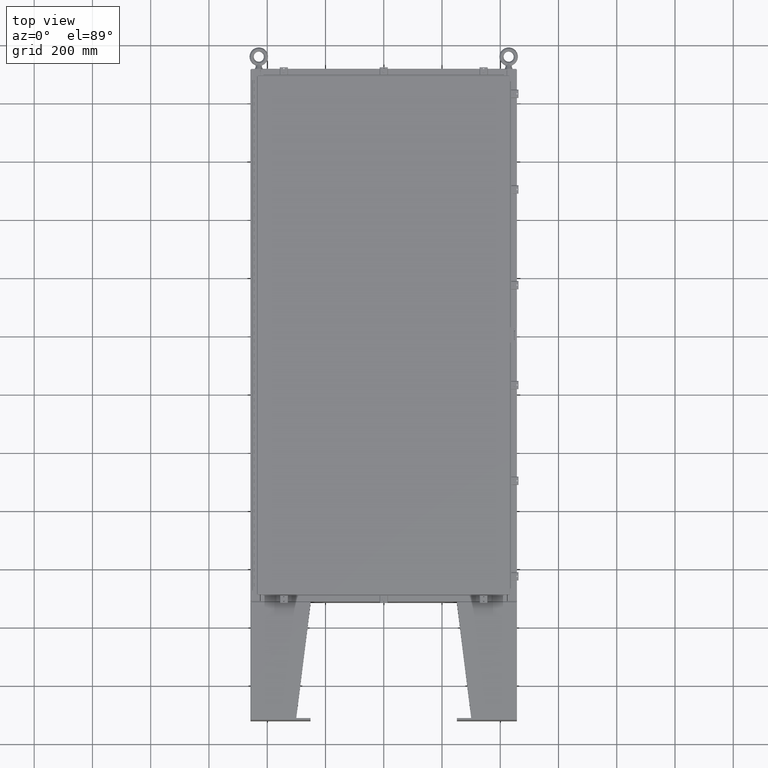
[diagram: clean part render]
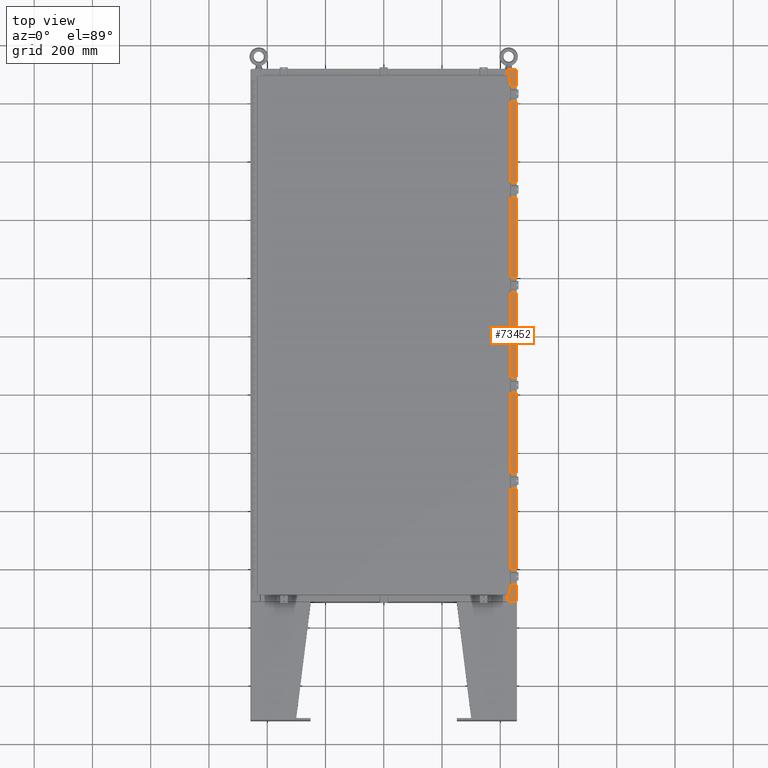
[diagram: same view with one face highlighted and labeled with its STEP entity id]
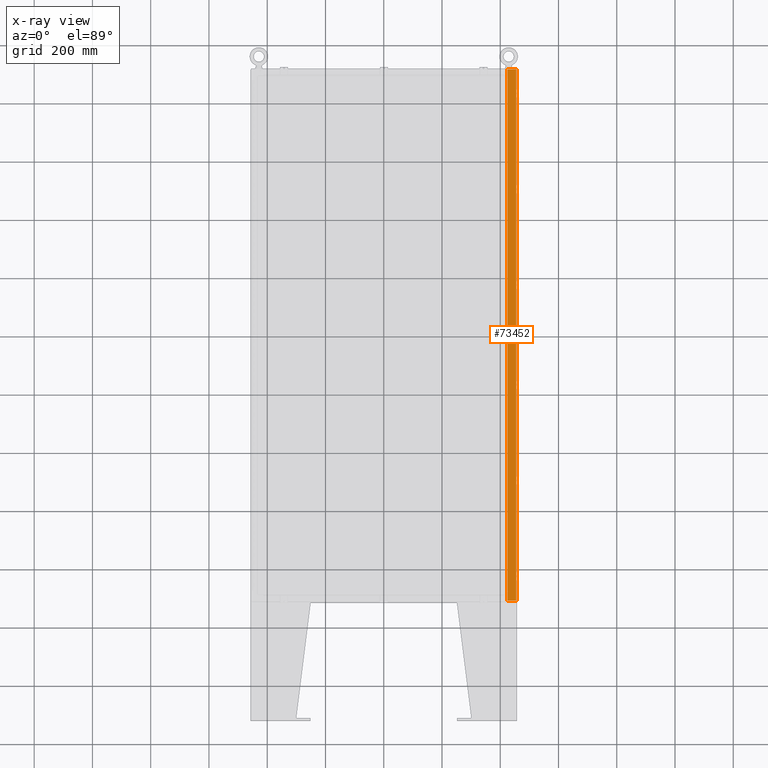
[diagram: x-ray of the same camera — body ghosted, the highlighted face saturated]
A machine part, top view. The second image highlights one B-rep face of the part: STEP entity #73452.
The next image is the same camera in x-ray: the body ghosted, the highlighted face saturated — about 0% of this face is hidden behind the body in this view.
In plain terms, the highlighted planar face has unit normal (-0, 0, -1).
Its self-contained STEP definition (entity closure, byte-faithful):
#429 = CIRCLE ( 'NONE', #20993, 0.01867499999999949400 ) ;
#518 = EDGE_CURVE ( 'NONE', #74068, #75049, #60732, .T. ) ;
#1331 = CARTESIAN_POINT ( 'NONE',  ( 16.69970000000004600, -34.63109999999999600, 11.92530000000000900 ) ) ;
#2299 = DIRECTION ( 'NONE',  ( -1.000000000000000000, 0.0000000000000000000, 7.132762385546384700E-015 ) ) ;
#2741 = ORIENTED_EDGE ( 'NONE', *, *, #13256, .F. ) ;
#3819 = DIRECTION ( 'NONE',  ( 1.000000000000000000, 0.0000000000000000000, 0.0000000000000000000 ) ) ;
#4761 = CARTESIAN_POINT ( 'NONE',  ( 17.91230000000004500, 35.92530000000000000, 11.92530000000000400 ) ) ;
#7985 = CARTESIAN_POINT ( 'NONE',  ( 16.75005000000005100, -34.59374999999999300, 11.92530000000000900 ) ) ;
#8443 = EDGE_CURVE ( 'NONE', #49162, #75654, #46451, .T. ) ;
#8463 = EDGE_CURVE ( 'NONE', #75049, #49162, #28720, .T. ) ;
#8584 = DIRECTION ( 'NONE',  ( -1.000000000000000000, 0.0000000000000000000, 0.0000000000000000000 ) ) ;
#9246 = DIRECTION ( 'NONE',  ( -0.0000000000000000000, 1.000000000000000000, -0.0000000000000000000 ) ) ;
#10523 = DIRECTION ( 'NONE',  ( -0.0000000000000000000, -1.000000000000000000, -0.0000000000000000000 ) ) ;
#10636 = LINE ( 'NONE', #73167, #70940 ) ;
#11411 = VECTOR ( 'NONE', #19327, 39.37007874015748100 ) ;
#11425 = DIRECTION ( 'NONE',  ( 1.000000000000000000, 8.681145560799444400E-014, -4.340572780399722200E-014 ) ) ;
#12005 = ORIENTED_EDGE ( 'NONE', *, *, #27074, .T. ) ;
#12372 = ORIENTED_EDGE ( 'NONE', *, *, #8443, .F. ) ;
#12540 = CARTESIAN_POINT ( 'NONE',  ( 16.75005000000005100, 34.59374999999999300, 11.92530000000000900 ) ) ;
#12801 = CARTESIAN_POINT ( 'NONE',  ( 16.75005000000005100, 34.63109999999999600, 11.92530000000000700 ) ) ;
#13256 = EDGE_CURVE ( 'NONE', #75654, #41419, #45793, .T. ) ;
#16170 = DIRECTION ( 'NONE',  ( 0.0000000000000000000, -1.000000000000000000, 0.0000000000000000000 ) ) ;
#16721 = EDGE_LOOP ( 'NONE', ( #25562, #70711, #28244, #22363, #12005, #47803, #31237, #2741, #12372, #31892, #67130, #35700 ) ) ;
#18594 = CARTESIAN_POINT ( 'NONE',  ( 16.69970000000004600, 0.0000000000000000000, 11.92530000000000900 ) ) ;
#18624 = DIRECTION ( 'NONE',  ( -1.000000000000000000, 8.681145560799444400E-014, 4.340572780399722200E-014 ) ) ;
#18989 = CARTESIAN_POINT ( 'NONE',  ( 16.69970000000004600, 35.92530000000000000, 11.92530000000000900 ) ) ;
#19327 = DIRECTION ( 'NONE',  ( 1.000000000000000000, -3.566381192773192400E-015, -7.132762385546384700E-015 ) ) ;
#20765 = VERTEX_POINT ( 'NONE', #59385 ) ;
#20849 = VERTEX_POINT ( 'NONE', #47364 ) ;
#20993 = AXIS2_PLACEMENT_3D ( 'NONE', #35031, #76731, #41056 ) ;
#21209 = CARTESIAN_POINT ( 'NONE',  ( 16.75005000000005100, -34.63109999999999600, 11.92530000000000900 ) ) ;
#22363 = ORIENTED_EDGE ( 'NONE', *, *, #69185, .F. ) ;
#22927 = AXIS2_PLACEMENT_3D ( 'NONE', #40199, #47132, #34795 ) ;
#24161 = EDGE_CURVE ( 'NONE', #57644, #20849, #70484, .T. ) ;
#25176 = DIRECTION ( 'NONE',  ( -7.132762385546384700E-015, 0.0000000000000000000, -1.000000000000000000 ) ) ;
#25424 = PLANE ( 'NONE',  #41160 ) ;
#25562 = ORIENTED_EDGE ( 'NONE', *, *, #37557, .F. ) ;
#27074 = EDGE_CURVE ( 'NONE', #73090, #57644, #10636, .T. ) ;
#27588 = LINE ( 'NONE', #69618, #59247 ) ;
#28244 = ORIENTED_EDGE ( 'NONE', *, *, #51739, .T. ) ;
#28335 = CARTESIAN_POINT ( 'NONE',  ( 16.75005000000005100, 34.63109999999999600, 11.92530000000000900 ) ) ;
#28720 = LINE ( 'NONE', #63782, #58528 ) ;
#29022 = FACE_OUTER_BOUND ( 'NONE', #16721, .T. ) ;
#31237 = ORIENTED_EDGE ( 'NONE', *, *, #34967, .F. ) ;
#31387 = CARTESIAN_POINT ( 'NONE',  ( 16.71270000000005100, 34.59374999999999300, 11.92530000000000700 ) ) ;
#31892 = ORIENTED_EDGE ( 'NONE', *, *, #8463, .F. ) ;
#34795 = DIRECTION ( 'NONE',  ( 1.000000000000000000, 0.0000000000000000000, 0.0000000000000000000 ) ) ;
#34967 = EDGE_CURVE ( 'NONE', #41419, #20849, #71229, .T. ) ;
#35031 = CARTESIAN_POINT ( 'NONE',  ( 16.75005000000005100, -34.61242499999999500, 11.92530000000000700 ) ) ;
#35700 = ORIENTED_EDGE ( 'NONE', *, *, #41469, .F. ) ;
#36865 = CARTESIAN_POINT ( 'NONE',  ( -4.280216933236570900E-014, -35.92529999999992900, 11.92530000000013000 ) ) ;
#37557 = EDGE_CURVE ( 'NONE', #40365, #38569, #39036, .T. ) ;
#38569 = VERTEX_POINT ( 'NONE', #21209 ) ;
#38782 = VECTOR ( 'NONE', #60109, 39.37007874015748100 ) ;
#38964 = CARTESIAN_POINT ( 'NONE',  ( 16.75005000000005100, -34.59374999999999300, 11.92530000000000700 ) ) ;
#39036 = LINE ( 'NONE', #58771, #40926 ) ;
#39457 = CARTESIAN_POINT ( 'NONE',  ( 16.71270000000005100, -34.59374999999999300, 11.92530000000000700 ) ) ;
#39621 = EDGE_CURVE ( 'NONE', #40365, #20765, #27588, .T. ) ;
#40199 = CARTESIAN_POINT ( 'NONE',  ( 16.75005000000005100, 34.61242499999999500, 11.92530000000000700 ) ) ;
#40365 = VERTEX_POINT ( 'NONE', #1331 ) ;
#40926 = VECTOR ( 'NONE', #11425, 39.37007874015748100 ) ;
#41056 = DIRECTION ( 'NONE',  ( 1.000000000000000000, 0.0000000000000000000, 0.0000000000000000000 ) ) ;
#41160 = AXIS2_PLACEMENT_3D ( 'NONE', #55115, #25176, #67052 ) ;
#41419 = VERTEX_POINT ( 'NONE', #28335 ) ;
#41469 = EDGE_CURVE ( 'NONE', #38569, #74068, #429, .T. ) ;
#44931 = VECTOR ( 'NONE', #8584, 39.37007874015748100 ) ;
#45793 = CIRCLE ( 'NONE', #22927, 0.01867499999999949400 ) ;
#46451 = LINE ( 'NONE', #68755, #76203 ) ;
#47132 = DIRECTION ( 'NONE',  ( 7.132762385546384700E-015, 0.0000000000000000000, 1.000000000000000000 ) ) ;
#47364 = CARTESIAN_POINT ( 'NONE',  ( 16.69970000000004600, 34.63110000000000400, 11.92530000000000900 ) ) ;
#47803 = ORIENTED_EDGE ( 'NONE', *, *, #24161, .T. ) ;
#48716 = VERTEX_POINT ( 'NONE', #51523 ) ;
#49162 = VERTEX_POINT ( 'NONE', #31387 ) ;
#51523 = CARTESIAN_POINT ( 'NONE',  ( 17.91230000000004500, -35.92529999999999300, 11.92530000000000400 ) ) ;
#51739 = EDGE_CURVE ( 'NONE', #20765, #48716, #74450, .T. ) ;
#55115 = CARTESIAN_POINT ( 'NONE',  ( 8.532114493236880700E-014, 0.0000000000000000000, 11.92530000000013000 ) ) ;
#55440 = VECTOR ( 'NONE', #18624, 39.37007874015748100 ) ;
#57644 = VERTEX_POINT ( 'NONE', #18989 ) ;
#58528 = VECTOR ( 'NONE', #9246, 39.37007874015748100 ) ;
#58771 = CARTESIAN_POINT ( 'NONE',  ( 16.69970000000004600, -34.63109999999999600, 11.92530000000000900 ) ) ;
#59247 = VECTOR ( 'NONE', #16170, 39.37007874015748100 ) ;
#59385 = CARTESIAN_POINT ( 'NONE',  ( 16.69970000000004600, -35.92529999999999300, 11.92530000000000900 ) ) ;
#60109 = DIRECTION ( 'NONE',  ( 0.0000000000000000000, -1.000000000000000000, 0.0000000000000000000 ) ) ;
#60127 = LINE ( 'NONE', #63822, #74094 ) ;
#60732 = LINE ( 'NONE', #38964, #44931 ) ;
#63782 = CARTESIAN_POINT ( 'NONE',  ( 16.71270000000005100, -34.59374999999999300, 11.92530000000000700 ) ) ;
#63822 = CARTESIAN_POINT ( 'NONE',  ( 17.91230000000004500, -35.92529999999999300, 11.92530000000000400 ) ) ;
#67052 = DIRECTION ( 'NONE',  ( -1.000000000000000000, 0.0000000000000000000, 7.132762385546384700E-015 ) ) ;
#67130 = ORIENTED_EDGE ( 'NONE', *, *, #518, .F. ) ;
#68755 = CARTESIAN_POINT ( 'NONE',  ( 16.71270000000005100, 34.59374999999999300, 11.92530000000000700 ) ) ;
#69185 = EDGE_CURVE ( 'NONE', #73090, #48716, #60127, .T. ) ;
#69618 = CARTESIAN_POINT ( 'NONE',  ( 16.69970000000004600, 0.0000000000000000000, 11.92530000000000900 ) ) ;
#70484 = LINE ( 'NONE', #18594, #38782 ) ;
#70711 = ORIENTED_EDGE ( 'NONE', *, *, #39621, .T. ) ;
#70940 = VECTOR ( 'NONE', #2299, 39.37007874015748100 ) ;
#71229 = LINE ( 'NONE', #12801, #55440 ) ;
#73090 = VERTEX_POINT ( 'NONE', #4761 ) ;
#73167 = CARTESIAN_POINT ( 'NONE',  ( 8.532114493236880700E-014, 35.92530000000000000, 11.92530000000013000 ) ) ;
#73452 = ADVANCED_FACE ( 'NONE', ( #29022 ), #25424, .F. ) ;
#74068 = VERTEX_POINT ( 'NONE', #7985 ) ;
#74094 = VECTOR ( 'NONE', #10523, 39.37007874015748100 ) ;
#74450 = LINE ( 'NONE', #36865, #11411 ) ;
#75049 = VERTEX_POINT ( 'NONE', #39457 ) ;
#75654 = VERTEX_POINT ( 'NONE', #12540 ) ;
#76203 = VECTOR ( 'NONE', #3819, 39.37007874015748100 ) ;
#76731 = DIRECTION ( 'NONE',  ( 7.132762385546384700E-015, 0.0000000000000000000, 1.000000000000000000 ) ) ;